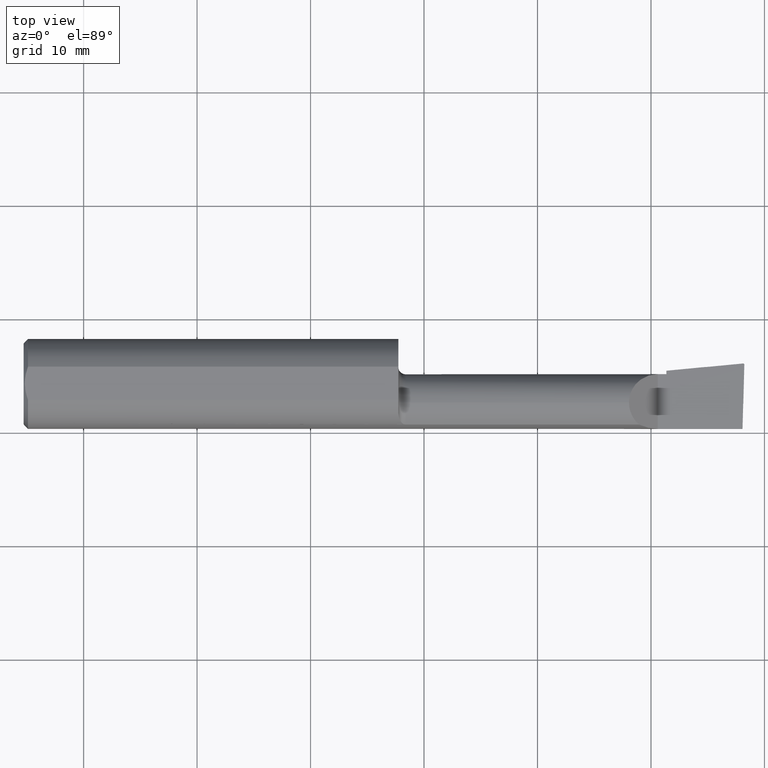
[diagram: clean part render]
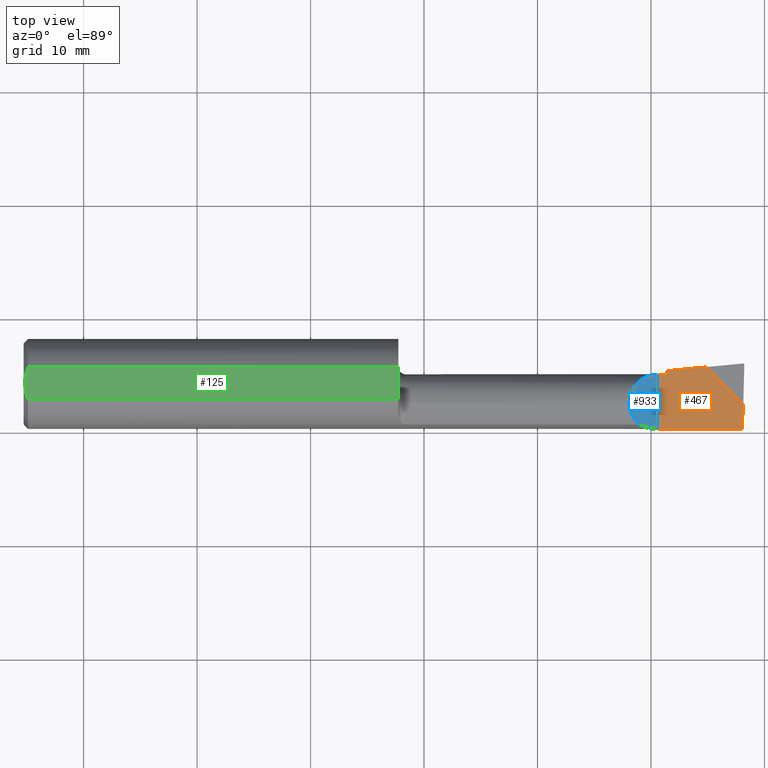
[diagram: same view with three faces highlighted in distinct colors, each labeled with its STEP entity id]
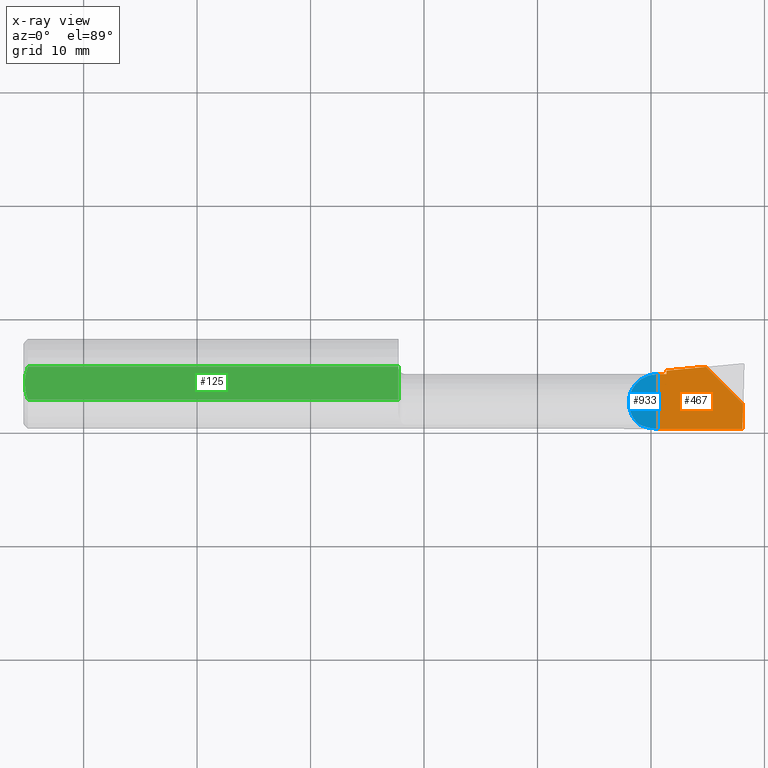
[diagram: x-ray of the same camera — body ghosted, the three highlighted faces saturated]
A machine part, top view with three faces highlighted in distinct colors.
The next image is the same camera in x-ray (body ghosted, the three faces saturated) — at least one of them is partly hidden behind the body in this view.
Their STEP definitions:

[orange] entity #467 — the highlighted planar face has unit normal (0, 0, -1).
#27 = VERTEX_POINT ( 'NONE', #532 ) ;
#41 = VECTOR ( 'NONE', #582, 1000.000000000000000 ) ;
#77 = DIRECTION ( 'NONE',  ( -0.9953961983671787417, -0.09584575252022449476, 0.000000000000000000 ) ) ;
#133 = VERTEX_POINT ( 'NONE', #941 ) ;
#155 = DIRECTION ( 'NONE',  ( -0.000000000000000000, 0.000000000000000000, -1.000000000000000000 ) ) ;
#156 = EDGE_CURVE ( 'NONE', #27, #133, #1143, .T. ) ;
#229 = VERTEX_POINT ( 'NONE', #279 ) ;
#265 = VECTOR ( 'NONE', #77, 1000.000000000000114 ) ;
#279 = CARTESIAN_POINT ( 'NONE',  ( 55.88000000000000256, -3.964939999999999465, -8.673617379884035472E-16 ) ) ;
#286 = VECTOR ( 'NONE', #681, 1000.000000000000114 ) ;
#297 = EDGE_LOOP ( 'NONE', ( #438, #856, #443, #1163, #964, #1245, #814 ) ) ;
#367 = DIRECTION ( 'NONE',  ( -1.000000000000000000, 0.000000000000000000, 0.000000000000000000 ) ) ;
#372 = CARTESIAN_POINT ( 'NONE',  ( 55.88000000000000256, 0.8610600000000002696, -8.673617379884035472E-16 ) ) ;
#403 = LINE ( 'NONE', #777, #985 ) ;
#420 = CARTESIAN_POINT ( 'NONE',  ( 56.64199999999999591, 4.444999999999999396, -8.673617379884035472E-16 ) ) ;
#431 = VECTOR ( 'NONE', #617, 1000.000000000000000 ) ;
#438 = ORIENTED_EDGE ( 'NONE', *, *, #712, .T. ) ;
#443 = ORIENTED_EDGE ( 'NONE', *, *, #539, .T. ) ;
#445 = CARTESIAN_POINT ( 'NONE',  ( 63.34737096957299229, -3.964939999999998577, -1.734723475976807094E-15 ) ) ;
#467 = ADVANCED_FACE ( 'NONE', ( #1121 ), #1127, .F. ) ;
#469 = CARTESIAN_POINT ( 'NONE',  ( 59.81700000000001438, 1.826260000000001327, 0.000000000000000000 ) ) ;
#501 = DIRECTION ( 'NONE',  ( -1.000000000000000000, -0.000000000000000000, -0.000000000000000000 ) ) ;
#532 = CARTESIAN_POINT ( 'NONE',  ( 60.14048454551709000, 1.502775454482921269, 0.000000000000000000 ) ) ;
#539 = EDGE_CURVE ( 'NONE', #27, #1086, #646, .T. ) ;
#550 = CARTESIAN_POINT ( 'NONE',  ( 56.19984000534059021, 1.123334542424496041, -8.673617379884035472E-16 ) ) ;
#557 = AXIS2_PLACEMENT_3D ( 'NONE', #917, #155, #367 ) ;
#558 = LINE ( 'NONE', #770, #286 ) ;
#582 = DIRECTION ( 'NONE',  ( 0.7071067811865437980, -0.7071067811865513475, 0.000000000000000000 ) ) ;
#590 = EDGE_CURVE ( 'NONE', #229, #1145, #403, .T. ) ;
#612 = LINE ( 'NONE', #420, #431 ) ;
#617 = DIRECTION ( 'NONE',  ( 0.000000000000000000, 1.000000000000000000, 0.000000000000000000 ) ) ;
#646 = LINE ( 'NONE', #550, #265 ) ;
#654 = DIRECTION ( 'NONE',  ( 1.000000000000000000, 0.000000000000000000, 0.000000000000000000 ) ) ;
#666 = VERTEX_POINT ( 'NONE', #1054 ) ;
#674 = VECTOR ( 'NONE', #501, 1000.000000000000000 ) ;
#681 = DIRECTION ( 'NONE',  ( 0.02634618898890611627, 0.9996528789163570128, 0.000000000000000000 ) ) ;
#704 = CARTESIAN_POINT ( 'NONE',  ( 63.50000000000000000, -3.964939999999998577, -8.673617379884035472E-16 ) ) ;
#712 = EDGE_CURVE ( 'NONE', #1015, #133, #558, .T. ) ;
#770 = CARTESIAN_POINT ( 'NONE',  ( 63.56368066258591654, 4.242494003031995753, -8.673617379884035472E-16 ) ) ;
#777 = CARTESIAN_POINT ( 'NONE',  ( 55.88000000000000256, 4.444999999999999396, -8.673617379884035472E-16 ) ) ;
#814 = ORIENTED_EDGE ( 'NONE', *, *, #836, .F. ) ;
#836 = EDGE_CURVE ( 'NONE', #1015, #229, #1181, .T. ) ;
#848 = LINE ( 'NONE', #1217, #1071 ) ;
#856 = ORIENTED_EDGE ( 'NONE', *, *, #156, .F. ) ;
#882 = EDGE_CURVE ( 'NONE', #666, #1086, #612, .T. ) ;
#917 = CARTESIAN_POINT ( 'NONE',  ( 55.88000000000000256, 4.444999999999999396, -8.673617379884035472E-16 ) ) ;
#941 = CARTESIAN_POINT ( 'NONE',  ( 63.40542582631751856, -1.762165826317532158, 0.000000000000000000 ) ) ;
#953 = EDGE_CURVE ( 'NONE', #1145, #666, #848, .T. ) ;
#964 = ORIENTED_EDGE ( 'NONE', *, *, #953, .F. ) ;
#985 = VECTOR ( 'NONE', #1046, 1000.000000000000000 ) ;
#1015 = VERTEX_POINT ( 'NONE', #445 ) ;
#1022 = CARTESIAN_POINT ( 'NONE',  ( 56.64199999999999591, 1.165909707461280309, -8.673617379884035472E-16 ) ) ;
#1046 = DIRECTION ( 'NONE',  ( -0.000000000000000000, 1.000000000000000000, -0.000000000000000000 ) ) ;
#1054 = CARTESIAN_POINT ( 'NONE',  ( 56.64199999999999591, 0.8610600000000002696, -8.673617379884035472E-16 ) ) ;
#1071 = VECTOR ( 'NONE', #654, 1000.000000000000000 ) ;
#1086 = VERTEX_POINT ( 'NONE', #1022 ) ;
#1121 = FACE_OUTER_BOUND ( 'NONE', #297, .T. ) ;
#1127 = PLANE ( 'NONE',  #557 ) ;
#1143 = LINE ( 'NONE', #469, #41 ) ;
#1145 = VERTEX_POINT ( 'NONE', #372 ) ;
#1163 = ORIENTED_EDGE ( 'NONE', *, *, #882, .F. ) ;
#1181 = LINE ( 'NONE', #704, #674 ) ;
#1217 = CARTESIAN_POINT ( 'NONE',  ( 33.02000000000001023, 0.8610600000000002696, -8.673617379884035472E-16 ) ) ;
#1245 = ORIENTED_EDGE ( 'NONE', *, *, #590, .F. ) ;

[blue] entity #933 — the highlighted planar face has unit normal (-0.7071, 0, -0.7071).
#2 = EDGE_CURVE ( 'NONE', #795, #684, #213, .T. ) ;
#17 = EDGE_LOOP ( 'NONE', ( #386, #232, #957, #1169 ) ) ;
#33 = EDGE_CURVE ( 'NONE', #695, #401, #1073, .T. ) ;
#49 = CARTESIAN_POINT ( 'NONE',  ( 54.74300171423059425, -3.840973355998292149, 1.139538285769383430 ) ) ;
#138 = CARTESIAN_POINT ( 'NONE',  ( 55.30478309583587304, -3.964570693771735765, 0.5777569041641154035 ) ) ;
#161 = PLANE ( 'NONE',  #1136 ) ;
#163 = CARTESIAN_POINT ( 'NONE',  ( 55.88000000000000256, -3.964939186418879213, 0.002539999999978843903 ) ) ;
#213 =( BOUNDED_CURVE ( )  B_SPLINE_CURVE ( 3, ( #255, #1007, #619, #719 ),
 .UNSPECIFIED., .F., .T. ) 
 B_SPLINE_CURVE_WITH_KNOTS ( ( 4, 4 ),
 ( 4.713388980551348695, 6.283185307179586232 ),
 .UNSPECIFIED. ) 
 CURVE ( )  GEOMETRIC_REPRESENTATION_ITEM ( )  RATIONAL_B_SPLINE_CURVE ( ( 1.000000000000000000, 0.8049734974886378902, 0.8049734974886378902, 1.000000000000000000 ) ) 
 REPRESENTATION_ITEM ( '' )  );
#232 = ORIENTED_EDGE ( 'NONE', *, *, #2, .T. ) ;
#238 = CARTESIAN_POINT ( 'NONE',  ( 53.65407863508172426, -3.109668751225283412, 2.228461364918261189 ) ) ;
#247 = CARTESIAN_POINT ( 'NONE',  ( 54.22074505735906769, -3.599887049924353821, 1.661794942640917094 ) ) ;
#249 =( BOUNDED_CURVE ( )  B_SPLINE_CURVE ( 3, ( #916, #626, #238, #842 ),
 .UNSPECIFIED., .F., .T. ) 
 B_SPLINE_CURVE_WITH_KNOTS ( ( 4, 4 ),
 ( 0.000000000000000000, 0.8576058604657700313 ),
 .UNSPECIFIED. ) 
 CURVE ( )  GEOMETRIC_REPRESENTATION_ITEM ( )  RATIONAL_B_SPLINE_CURVE ( ( 1.000000000000000000, 0.9396427478180653381, 0.9396427478180653381, 1.000000000000000000 ) ) 
 REPRESENTATION_ITEM ( '' )  );
#255 = CARTESIAN_POINT ( 'NONE',  ( 55.88000000000000256, 0.8610587299996853572, 0.002539999999979711265 ) ) ;
#294 = CARTESIAN_POINT ( 'NONE',  ( 55.88000000000000256, -3.964939186418879213, 0.002539999999978843903 ) ) ;
#313 = CARTESIAN_POINT ( 'NONE',  ( 55.88000000000000256, 0.8610587299996853572, 0.002539999999979711265 ) ) ;
#384 = CARTESIAN_POINT ( 'NONE',  ( 53.34253999999999252, -1.678939999999999433, 2.540000000000000036 ) ) ;
#386 = ORIENTED_EDGE ( 'NONE', *, *, #1111, .F. ) ;
#401 = VERTEX_POINT ( 'NONE', #421 ) ;
#421 = CARTESIAN_POINT ( 'NONE',  ( 54.22074505735906769, -3.599887049924353821, 1.661794942640917094 ) ) ;
#451 = FACE_OUTER_BOUND ( 'NONE', #17, .T. ) ;
#457 = LINE ( 'NONE', #1002, #596 ) ;
#543 = DIRECTION ( 'NONE',  ( -0.7071067811865489050, 0.000000000000000000, -0.7071067811865462405 ) ) ;
#549 = DIRECTION ( 'NONE',  ( -0.7071067811865462405, 0.000000000000000000, 0.7071067811865489050 ) ) ;
#596 = VECTOR ( 'NONE', #1222, 1000.000000000000000 ) ;
#619 = CARTESIAN_POINT ( 'NONE',  ( 53.34253999999997831, -0.1922219241183829586, 2.540000000000000036 ) ) ;
#626 = CARTESIAN_POINT ( 'NONE',  ( 53.34253999999998541, -2.428222866824016446, 2.540000000000000036 ) ) ;
#684 = VERTEX_POINT ( 'NONE', #384 ) ;
#695 = VERTEX_POINT ( 'NONE', #294 ) ;
#719 = CARTESIAN_POINT ( 'NONE',  ( 53.34253999999999252, -1.678939999999999433, 2.540000000000000036 ) ) ;
#751 = CARTESIAN_POINT ( 'NONE',  ( 52.19699999999999562, 2.540000000000000480, 3.685539999999999150 ) ) ;
#795 = VERTEX_POINT ( 'NONE', #313 ) ;
#842 = CARTESIAN_POINT ( 'NONE',  ( 54.22074505735906769, -3.599887049924353821, 1.661794942640917094 ) ) ;
#916 = CARTESIAN_POINT ( 'NONE',  ( 53.34253999999999252, -1.678939999999999433, 2.540000000000000036 ) ) ;
#933 = ADVANCED_FACE ( 'NONE', ( #451 ), #161, .F. ) ;
#957 = ORIENTED_EDGE ( 'NONE', *, *, #1099, .T. ) ;
#1002 = CARTESIAN_POINT ( 'NONE',  ( 55.88000000000000256, 4.444999999999999396, 0.002539999999979711265 ) ) ;
#1007 = CARTESIAN_POINT ( 'NONE',  ( 54.39328266747760665, 0.8595720119238138279, 1.489257332522372135 ) ) ;
#1073 =( BOUNDED_CURVE ( )  B_SPLINE_CURVE ( 3, ( #163, #138, #49, #247 ),
 .UNSPECIFIED., .F., .T. ) 
 B_SPLINE_CURVE_WITH_KNOTS ( ( 4, 4 ),
 ( 4.713029595418891660, 5.144867427157565842 ),
 .UNSPECIFIED. ) 
 CURVE ( )  GEOMETRIC_REPRESENTATION_ITEM ( )  RATIONAL_B_SPLINE_CURVE ( ( 1.000000000000000000, 0.9845199556095911575, 0.9845199556095911575, 1.000000000000000000 ) ) 
 REPRESENTATION_ITEM ( '' )  );
#1099 = EDGE_CURVE ( 'NONE', #684, #401, #249, .T. ) ;
#1111 = EDGE_CURVE ( 'NONE', #795, #695, #457, .T. ) ;
#1136 = AXIS2_PLACEMENT_3D ( 'NONE', #751, #543, #549 ) ;
#1169 = ORIENTED_EDGE ( 'NONE', *, *, #33, .F. ) ;
#1222 = DIRECTION ( 'NONE',  ( 0.000000000000000000, -1.000000000000000000, 0.000000000000000000 ) ) ;

[green] entity #125 — the highlighted planar face has unit normal (0, 0, -1).
#19 = CARTESIAN_POINT ( 'NONE',  ( 0.1015999999999948056, 3.500044931498621813E-16, 3.685539999999999150 ) ) ;
#30 = CARTESIAN_POINT ( 'NONE',  ( 33.02000000000001023, -1.462034237629201483, 3.685539999999999150 ) ) ;
#34 = CARTESIAN_POINT ( 'NONE',  ( 0.2235145214959431414, 0.9851334071146859994, 3.685539999999999594 ) ) ;
#73 = CARTESIAN_POINT ( 'NONE',  ( 0.2946835978831989777, -1.227949873118057589, 3.685539999999999150 ) ) ;
#105 = CARTESIAN_POINT ( 'NONE',  ( 0.3809999999999924558, -1.462034237629201039, 3.685539999999999150 ) ) ;
#125 = ADVANCED_FACE ( 'NONE', ( #1153 ), #568, .F. ) ;
#132 = CARTESIAN_POINT ( 'NONE',  ( 33.02000000000001023, 2.540000000000000480, 3.685539999999999150 ) ) ;
#142 = CARTESIAN_POINT ( 'NONE',  ( 0.3809999999999924558, 1.462034237629201039, 3.685539999999999150 ) ) ;
#150 = CARTESIAN_POINT ( 'NONE',  ( 0.1015999999999948056, 3.500044931498621813E-16, 3.685539999999999150 ) ) ;
#169 = CARTESIAN_POINT ( 'NONE',  ( 0.2247358976179796297, -0.9898225455501730163, 3.685539999999998706 ) ) ;
#200 = ORIENTED_EDGE ( 'NONE', *, *, #566, .T. ) ;
#201 = EDGE_CURVE ( 'NONE', #324, #660, #657, .T. ) ;
#204 = VECTOR ( 'NONE', #363, 1000.000000000000000 ) ;
#205 = VECTOR ( 'NONE', #1078, 1000.000000000000000 ) ;
#324 = VERTEX_POINT ( 'NONE', #30 ) ;
#338 = EDGE_CURVE ( 'NONE', #759, #324, #1193, .T. ) ;
#363 = DIRECTION ( 'NONE',  ( -1.000000000000000000, -0.000000000000000000, -0.000000000000000000 ) ) ;
#458 = CARTESIAN_POINT ( 'NONE',  ( 0.3809999999999924558, -1.462034237629201039, 3.685539999999999150 ) ) ;
#527 = CARTESIAN_POINT ( 'NONE',  ( 0.1015999999999948056, 3.500044931498621813E-16, 3.685539999999999150 ) ) ;
#536 = ORIENTED_EDGE ( 'NONE', *, *, #867, .T. ) ;
#566 = EDGE_CURVE ( 'NONE', #879, #660, #705, .T. ) ;
#568 = PLANE ( 'NONE',  #731 ) ;
#571 = DIRECTION ( 'NONE',  ( 1.000000000000000000, 0.000000000000000000, 0.000000000000000000 ) ) ;
#574 = DIRECTION ( 'NONE',  ( -0.000000000000000000, 0.000000000000000000, -1.000000000000000000 ) ) ;
#605 = CARTESIAN_POINT ( 'NONE',  ( 0.3809999999999924558, 1.462034237629201039, 3.685539999999999150 ) ) ;
#657 = LINE ( 'NONE', #839, #204 ) ;
#660 = VERTEX_POINT ( 'NONE', #105 ) ;
#705 = B_SPLINE_CURVE_WITH_KNOTS ( 'NONE', 3,
 ( #150, #837, #1023, #169, #73, #458 ),
 .UNSPECIFIED., .F., .F.,
 ( 4, 2, 4 ),
 ( 0.004431269906162986494, 0.005173847132308764286, 0.005916424358454542079 ),
 .UNSPECIFIED. ) ;
#731 = AXIS2_PLACEMENT_3D ( 'NONE', #748, #574, #1227 ) ;
#742 = ORIENTED_EDGE ( 'NONE', *, *, #338, .F. ) ;
#748 = CARTESIAN_POINT ( 'NONE',  ( 0.000000000000000000, 2.540000000000000480, 3.685539999999999150 ) ) ;
#750 = VERTEX_POINT ( 'NONE', #142 ) ;
#759 = VERTEX_POINT ( 'NONE', #1087 ) ;
#796 = CARTESIAN_POINT ( 'NONE',  ( 0.2941137992624218711, 1.226404617004863917, 3.685539999999999150 ) ) ;
#811 = VECTOR ( 'NONE', #571, 1000.000000000000000 ) ;
#837 = CARTESIAN_POINT ( 'NONE',  ( 0.1015999999999284698, -0.2510152873235154125, 3.685539999999999150 ) ) ;
#839 = CARTESIAN_POINT ( 'NONE',  ( 63.50000000000000000, -1.462034237629201039, 3.685539999999999150 ) ) ;
#847 = ORIENTED_EDGE ( 'NONE', *, *, #201, .F. ) ;
#867 = EDGE_CURVE ( 'NONE', #750, #879, #1025, .T. ) ;
#879 = VERTEX_POINT ( 'NONE', #19 ) ;
#949 = EDGE_LOOP ( 'NONE', ( #742, #1185, #536, #200, #847 ) ) ;
#972 = CARTESIAN_POINT ( 'NONE',  ( 0.1015999999999299547, 0.2511217935535139389, 3.685539999999999150 ) ) ;
#1023 = CARTESIAN_POINT ( 'NONE',  ( 0.1280887710546985137, -0.5028858476047466386, 3.685539999999999594 ) ) ;
#1025 = B_SPLINE_CURVE_WITH_KNOTS ( 'NONE', 3,
 ( #605, #796, #34, #1081, #972, #527 ),
 .UNSPECIFIED., .F., .F.,
 ( 4, 2, 4 ),
 ( 0.002945485300212928158, 0.003688377603187957543, 0.004431269906162986494 ),
 .UNSPECIFIED. ) ;
#1078 = DIRECTION ( 'NONE',  ( 0.000000000000000000, -1.000000000000000000, 0.000000000000000000 ) ) ;
#1081 = CARTESIAN_POINT ( 'NONE',  ( 0.1274433735584585836, 0.4981409861471362555, 3.685539999999998706 ) ) ;
#1087 = CARTESIAN_POINT ( 'NONE',  ( 33.02000000000001023, 1.462034237629201039, 3.685539999999999150 ) ) ;
#1151 = LINE ( 'NONE', #1230, #811 ) ;
#1153 = FACE_OUTER_BOUND ( 'NONE', #949, .T. ) ;
#1185 = ORIENTED_EDGE ( 'NONE', *, *, #1194, .F. ) ;
#1193 = LINE ( 'NONE', #132, #205 ) ;
#1194 = EDGE_CURVE ( 'NONE', #750, #759, #1151, .T. ) ;
#1227 = DIRECTION ( 'NONE',  ( -1.000000000000000000, 0.000000000000000000, 0.000000000000000000 ) ) ;
#1230 = CARTESIAN_POINT ( 'NONE',  ( 63.50000000000000000, 1.462034237629201039, 3.685539999999999150 ) ) ;